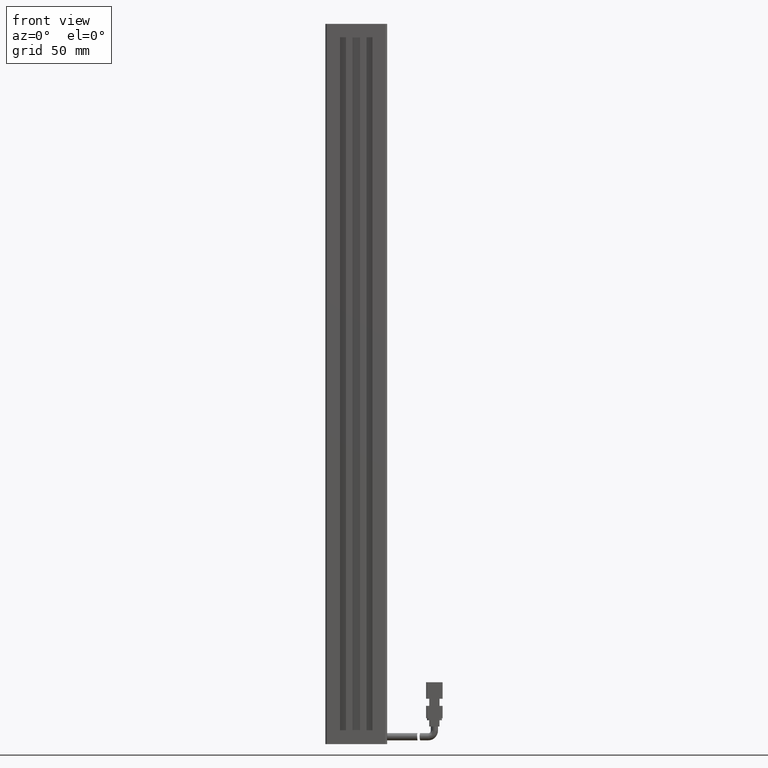
[diagram: clean part render]
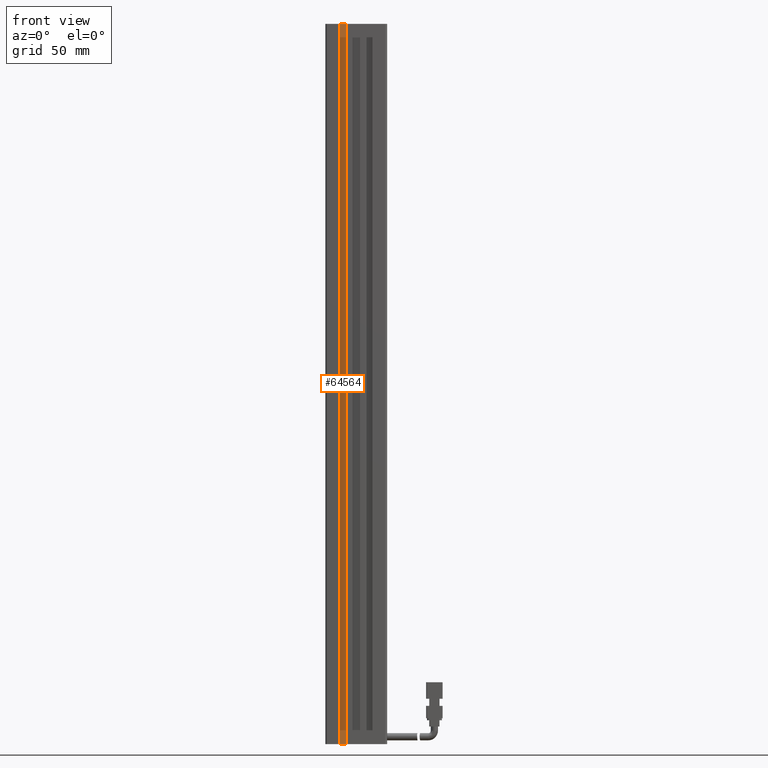
[diagram: same view with one face highlighted and labeled with its STEP entity id]
A machine part, front view. The second image highlights one B-rep face of the part: STEP entity #64564.
In plain terms, the highlighted planar face has unit normal (0, 1, 0).
Its self-contained STEP definition (entity closure, byte-faithful):
#10200 = LINE ( 'NONE', #20979, #11811 ) ;
#10555 = EDGE_CURVE ( 'NONE', #56552, #60558, #28292, .T. ) ;
#11811 = VECTOR ( 'NONE', #26254, 1000.000000000000000 ) ;
#12717 = FACE_OUTER_BOUND ( 'NONE', #14426, .T. ) ;
#14426 = EDGE_LOOP ( 'NONE', ( #36670, #16770, #40632, #60853 ) ) ;
#16770 = ORIENTED_EDGE ( 'NONE', *, *, #10555, .F. ) ;
#20145 = CARTESIAN_POINT ( 'NONE',  ( 35.92537974683543200, 16.19594479660386500, 60.00000000000001400 ) ) ;
#20979 = CARTESIAN_POINT ( 'NONE',  ( 32.92537974683543200, 16.19594479660386500, 60.00000000000001400 ) ) ;
#23224 = CARTESIAN_POINT ( 'NONE',  ( 40.92537974683542500, 16.19594479660386500, 60.00000000000001400 ) ) ;
#24970 = CARTESIAN_POINT ( 'NONE',  ( 32.92537974683543200, 16.19594479660386500, -290.0000000000000600 ) ) ;
#26109 = DIRECTION ( 'NONE',  ( -0.0000000000000000000, -0.0000000000000000000, -1.000000000000000000 ) ) ;
#26254 = DIRECTION ( 'NONE',  ( 0.0000000000000000000, -0.0000000000000000000, 1.000000000000000000 ) ) ;
#26589 = PLANE ( 'NONE',  #38141 ) ;
#26809 = DIRECTION ( 'NONE',  ( 0.0000000000000000000, 1.000000000000000000, 0.0000000000000000000 ) ) ;
#27927 = LINE ( 'NONE', #30960, #54046 ) ;
#28292 = LINE ( 'NONE', #23224, #56040 ) ;
#28323 = VERTEX_POINT ( 'NONE', #46737 ) ;
#28908 = EDGE_CURVE ( 'NONE', #44481, #28323, #27927, .T. ) ;
#30960 = CARTESIAN_POINT ( 'NONE',  ( 40.92537974683542500, 16.19594479660386500, -290.0000000000000600 ) ) ;
#32695 = EDGE_CURVE ( 'NONE', #44481, #56552, #10200, .T. ) ;
#35983 = DIRECTION ( 'NONE',  ( 1.000000000000000000, 0.0000000000000000000, 0.0000000000000000000 ) ) ;
#36670 = ORIENTED_EDGE ( 'NONE', *, *, #37516, .F. ) ;
#37516 = EDGE_CURVE ( 'NONE', #60558, #28323, #66161, .T. ) ;
#38141 = AXIS2_PLACEMENT_3D ( 'NONE', #58081, #26809, #63335 ) ;
#40632 = ORIENTED_EDGE ( 'NONE', *, *, #32695, .F. ) ;
#44481 = VERTEX_POINT ( 'NONE', #24970 ) ;
#45353 = CARTESIAN_POINT ( 'NONE',  ( 32.92537974683543200, 16.19594479660386500, 60.00000000000001400 ) ) ;
#46737 = CARTESIAN_POINT ( 'NONE',  ( 35.92537974683543200, 16.19594479660386500, -290.0000000000000600 ) ) ;
#54046 = VECTOR ( 'NONE', #35983, 1000.000000000000000 ) ;
#54249 = DIRECTION ( 'NONE',  ( 1.000000000000000000, 0.0000000000000000000, 0.0000000000000000000 ) ) ;
#56040 = VECTOR ( 'NONE', #54249, 1000.000000000000000 ) ;
#56552 = VERTEX_POINT ( 'NONE', #45353 ) ;
#58081 = CARTESIAN_POINT ( 'NONE',  ( 40.92537974683542500, 16.19594479660386500, 60.00000000000001400 ) ) ;
#60558 = VERTEX_POINT ( 'NONE', #20145 ) ;
#60853 = ORIENTED_EDGE ( 'NONE', *, *, #28908, .T. ) ;
#62638 = CARTESIAN_POINT ( 'NONE',  ( 35.92537974683543200, 16.19594479660386500, 60.00000000000001400 ) ) ;
#63335 = DIRECTION ( 'NONE',  ( 0.0000000000000000000, -0.0000000000000000000, 1.000000000000000000 ) ) ;
#64530 = VECTOR ( 'NONE', #26109, 1000.000000000000000 ) ;
#64564 = ADVANCED_FACE ( 'NONE', ( #12717 ), #26589, .F. ) ;
#66161 = LINE ( 'NONE', #62638, #64530 ) ;